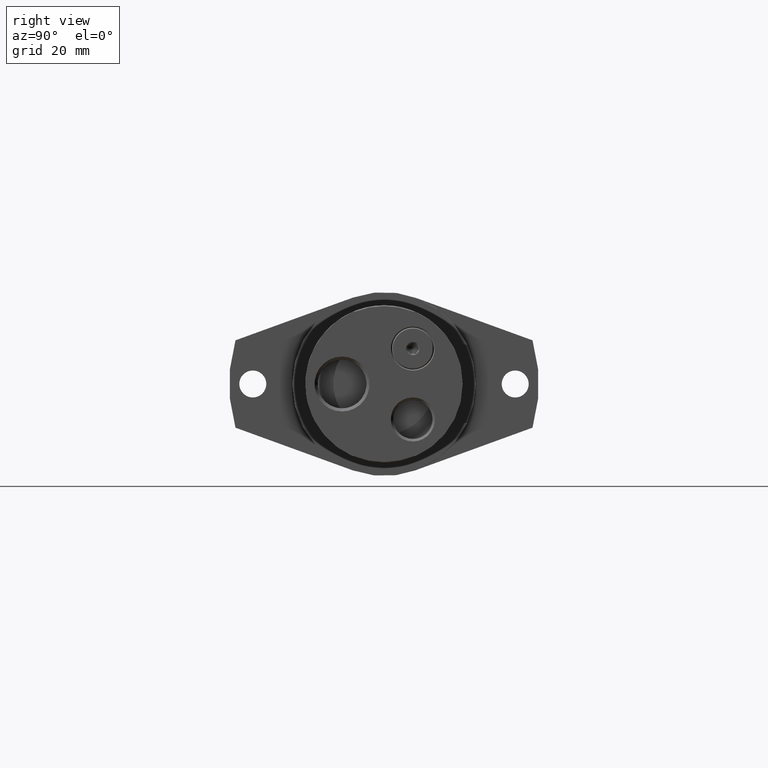
[diagram: clean part render]
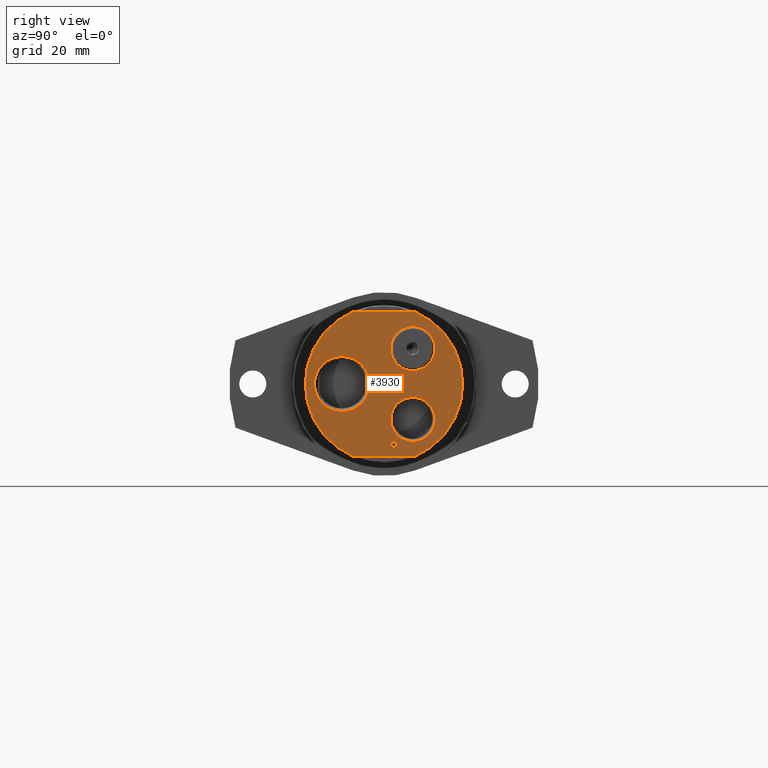
[diagram: same view with one face highlighted and labeled with its STEP entity id]
A machine part, right view. The second image highlights one B-rep face of the part: STEP entity #3930.
In plain terms, the highlighted planar face has unit normal (1, 0, 0).
Its self-contained STEP definition (entity closure, byte-faithful):
#101=FACE_BOUND('',#1281,.T.);
#102=FACE_BOUND('',#1282,.T.);
#103=FACE_BOUND('',#1283,.T.);
#104=FACE_BOUND('',#1284,.T.);
#105=FACE_BOUND('',#1285,.T.);
#106=FACE_BOUND('',#1286,.T.);
#107=FACE_BOUND('',#1287,.T.);
#108=FACE_BOUND('',#1288,.T.);
#125=B_SPLINE_CURVE_WITH_KNOTS('',2,(#5899,#5900,#5901,#5902),
 .UNSPECIFIED.,.F.,.F.,(3,1,3),(0.,1.,2.),.UNSPECIFIED.);
#126=B_SPLINE_CURVE_WITH_KNOTS('',2,(#5904,#5905,#5906,#5907),
 .UNSPECIFIED.,.F.,.F.,(3,1,3),(0.,1.,2.),.UNSPECIFIED.);
#127=B_SPLINE_CURVE_WITH_KNOTS('',2,(#5909,#5910,#5911,#5912),
 .UNSPECIFIED.,.F.,.F.,(3,1,3),(0.,1.,2.),.UNSPECIFIED.);
#394=LINE('',#5885,#703);
#395=LINE('',#5889,#704);
#396=LINE('',#5895,#705);
#397=LINE('',#5897,#706);
#398=LINE('',#5914,#707);
#399=LINE('',#5916,#708);
#400=LINE('',#5918,#709);
#401=LINE('',#5920,#710);
#402=LINE('',#5922,#711);
#403=LINE('',#5923,#712);
#404=LINE('',#5926,#713);
#405=LINE('',#5928,#714);
#406=LINE('',#5930,#715);
#407=LINE('',#5932,#716);
#408=LINE('',#5934,#717);
#409=LINE('',#5936,#718);
#410=LINE('',#5938,#719);
#411=LINE('',#5940,#720);
#412=LINE('',#5942,#721);
#413=LINE('',#5944,#722);
#414=LINE('',#5946,#723);
#415=LINE('',#5947,#724);
#416=LINE('',#5950,#725);
#417=LINE('',#5952,#726);
#418=LINE('',#5954,#727);
#419=LINE('',#5956,#728);
#420=LINE('',#5958,#729);
#421=LINE('',#5960,#730);
#422=LINE('',#5962,#731);
#423=LINE('',#5964,#732);
#424=LINE('',#5966,#733);
#425=LINE('',#5968,#734);
#426=LINE('',#5970,#735);
#427=LINE('',#5971,#736);
#428=LINE('',#5974,#737);
#429=LINE('',#5976,#738);
#430=LINE('',#5978,#739);
#431=LINE('',#5980,#740);
#432=LINE('',#5982,#741);
#433=LINE('',#5983,#742);
#434=LINE('',#5986,#743);
#435=LINE('',#5988,#744);
#436=LINE('',#5990,#745);
#437=LINE('',#5992,#746);
#438=LINE('',#5994,#747);
#439=LINE('',#5996,#748);
#440=LINE('',#5998,#749);
#441=LINE('',#6000,#750);
#442=LINE('',#6002,#751);
#443=LINE('',#6004,#752);
#444=LINE('',#6006,#753);
#445=LINE('',#6007,#754);
#703=VECTOR('',#4735,10.);
#704=VECTOR('',#4738,10.);
#705=VECTOR('',#4743,10.);
#706=VECTOR('',#4744,10.);
#707=VECTOR('',#4745,10.);
#708=VECTOR('',#4746,10.);
#709=VECTOR('',#4747,10.);
#710=VECTOR('',#4748,10.);
#711=VECTOR('',#4749,10.);
#712=VECTOR('',#4750,10.);
#713=VECTOR('',#4751,10.);
#714=VECTOR('',#4752,10.);
#715=VECTOR('',#4753,10.);
#716=VECTOR('',#4754,10.);
#717=VECTOR('',#4755,10.);
#718=VECTOR('',#4756,10.);
#719=VECTOR('',#4757,10.);
#720=VECTOR('',#4758,10.);
#721=VECTOR('',#4759,10.);
#722=VECTOR('',#4760,10.);
#723=VECTOR('',#4761,10.);
#724=VECTOR('',#4762,10.);
#725=VECTOR('',#4763,10.);
#726=VECTOR('',#4764,10.);
#727=VECTOR('',#4765,10.);
#728=VECTOR('',#4766,10.);
#729=VECTOR('',#4767,10.);
#730=VECTOR('',#4768,10.);
#731=VECTOR('',#4769,10.);
#732=VECTOR('',#4770,10.);
#733=VECTOR('',#4771,10.);
#734=VECTOR('',#4772,10.);
#735=VECTOR('',#4773,10.);
#736=VECTOR('',#4774,10.);
#737=VECTOR('',#4775,10.);
#738=VECTOR('',#4776,10.);
#739=VECTOR('',#4777,10.);
#740=VECTOR('',#4778,10.);
#741=VECTOR('',#4779,10.);
#742=VECTOR('',#4780,10.);
#743=VECTOR('',#4781,10.);
#744=VECTOR('',#4782,10.);
#745=VECTOR('',#4783,10.);
#746=VECTOR('',#4784,10.);
#747=VECTOR('',#4785,10.);
#748=VECTOR('',#4786,10.);
#749=VECTOR('',#4787,10.);
#750=VECTOR('',#4788,10.);
#751=VECTOR('',#4789,10.);
#752=VECTOR('',#4790,10.);
#753=VECTOR('',#4791,10.);
#754=VECTOR('',#4792,10.);
#1054=FACE_OUTER_BOUND('',#1280,.T.);
#1280=EDGE_LOOP('',(#2784,#2785,#2786,#2787));
#1281=EDGE_LOOP('',(#2788));
#1282=EDGE_LOOP('',(#2789,#2790,#2791,#2792,#2793,#2794,#2795,#2796,#2797,
#2798,#2799));
#1283=EDGE_LOOP('',(#2800,#2801,#2802,#2803,#2804,#2805,#2806,#2807,#2808,
#2809,#2810,#2811));
#1284=EDGE_LOOP('',(#2812,#2813,#2814,#2815,#2816,#2817,#2818,#2819,#2820,
#2821,#2822,#2823));
#1285=EDGE_LOOP('',(#2824,#2825,#2826,#2827,#2828,#2829));
#1286=EDGE_LOOP('',(#2830,#2831,#2832,#2833,#2834,#2835,#2836,#2837,#2838,
#2839,#2840,#2841));
#1287=EDGE_LOOP('',(#2842));
#1288=EDGE_LOOP('',(#2843));
#1528=CIRCLE('',#4212,10.4775);
#1530=CIRCLE('',#4215,30.);
#1531=CIRCLE('',#4216,30.);
#1532=CIRCLE('',#4217,8.41566502);
#1533=CIRCLE('',#4218,8.41566502);
#1741=VERTEX_POINT('',#5877);
#1743=VERTEX_POINT('',#5883);
#1744=VERTEX_POINT('',#5884);
#1745=VERTEX_POINT('',#5886);
#1746=VERTEX_POINT('',#5888);
#1747=VERTEX_POINT('',#5891);
#1748=VERTEX_POINT('',#5893);
#1749=VERTEX_POINT('',#5894);
#1750=VERTEX_POINT('',#5896);
#1751=VERTEX_POINT('',#5898);
#1752=VERTEX_POINT('',#5903);
#1753=VERTEX_POINT('',#5908);
#1754=VERTEX_POINT('',#5913);
#1755=VERTEX_POINT('',#5915);
#1756=VERTEX_POINT('',#5917);
#1757=VERTEX_POINT('',#5919);
#1758=VERTEX_POINT('',#5921);
#1759=VERTEX_POINT('',#5924);
#1760=VERTEX_POINT('',#5925);
#1761=VERTEX_POINT('',#5927);
#1762=VERTEX_POINT('',#5929);
#1763=VERTEX_POINT('',#5931);
#1764=VERTEX_POINT('',#5933);
#1765=VERTEX_POINT('',#5935);
#1766=VERTEX_POINT('',#5937);
#1767=VERTEX_POINT('',#5939);
#1768=VERTEX_POINT('',#5941);
#1769=VERTEX_POINT('',#5943);
#1770=VERTEX_POINT('',#5945);
#1771=VERTEX_POINT('',#5948);
#1772=VERTEX_POINT('',#5949);
#1773=VERTEX_POINT('',#5951);
#1774=VERTEX_POINT('',#5953);
#1775=VERTEX_POINT('',#5955);
#1776=VERTEX_POINT('',#5957);
#1777=VERTEX_POINT('',#5959);
#1778=VERTEX_POINT('',#5961);
#1779=VERTEX_POINT('',#5963);
#1780=VERTEX_POINT('',#5965);
#1781=VERTEX_POINT('',#5967);
#1782=VERTEX_POINT('',#5969);
#1783=VERTEX_POINT('',#5972);
#1784=VERTEX_POINT('',#5973);
#1785=VERTEX_POINT('',#5975);
#1786=VERTEX_POINT('',#5977);
#1787=VERTEX_POINT('',#5979);
#1788=VERTEX_POINT('',#5981);
#1789=VERTEX_POINT('',#5984);
#1790=VERTEX_POINT('',#5985);
#1791=VERTEX_POINT('',#5987);
#1792=VERTEX_POINT('',#5989);
#1793=VERTEX_POINT('',#5991);
#1794=VERTEX_POINT('',#5993);
#1795=VERTEX_POINT('',#5995);
#1796=VERTEX_POINT('',#5997);
#1797=VERTEX_POINT('',#5999);
#1798=VERTEX_POINT('',#6001);
#1799=VERTEX_POINT('',#6003);
#1800=VERTEX_POINT('',#6005);
#1801=VERTEX_POINT('',#6008);
#2142=EDGE_CURVE('',#1741,#1741,#1528,.T.);
#2145=EDGE_CURVE('',#1743,#1744,#394,.T.);
#2146=EDGE_CURVE('',#1744,#1745,#1530,.T.);
#2147=EDGE_CURVE('',#1745,#1746,#395,.T.);
#2148=EDGE_CURVE('',#1746,#1743,#1531,.T.);
#2149=EDGE_CURVE('',#1747,#1747,#1532,.T.);
#2150=EDGE_CURVE('',#1748,#1749,#396,.T.);
#2151=EDGE_CURVE('',#1749,#1750,#397,.T.);
#2152=EDGE_CURVE('',#1750,#1751,#125,.T.);
#2153=EDGE_CURVE('',#1751,#1752,#126,.T.);
#2154=EDGE_CURVE('',#1752,#1753,#127,.T.);
#2155=EDGE_CURVE('',#1753,#1754,#398,.T.);
#2156=EDGE_CURVE('',#1754,#1755,#399,.T.);
#2157=EDGE_CURVE('',#1755,#1756,#400,.T.);
#2158=EDGE_CURVE('',#1756,#1757,#401,.T.);
#2159=EDGE_CURVE('',#1757,#1758,#402,.T.);
#2160=EDGE_CURVE('',#1758,#1748,#403,.T.);
#2161=EDGE_CURVE('',#1759,#1760,#404,.T.);
#2162=EDGE_CURVE('',#1760,#1761,#405,.T.);
#2163=EDGE_CURVE('',#1761,#1762,#406,.T.);
#2164=EDGE_CURVE('',#1762,#1763,#407,.T.);
#2165=EDGE_CURVE('',#1763,#1764,#408,.T.);
#2166=EDGE_CURVE('',#1764,#1765,#409,.T.);
#2167=EDGE_CURVE('',#1765,#1766,#410,.T.);
#2168=EDGE_CURVE('',#1766,#1767,#411,.T.);
#2169=EDGE_CURVE('',#1767,#1768,#412,.T.);
#2170=EDGE_CURVE('',#1768,#1769,#413,.T.);
#2171=EDGE_CURVE('',#1769,#1770,#414,.T.);
#2172=EDGE_CURVE('',#1770,#1759,#415,.T.);
#2173=EDGE_CURVE('',#1771,#1772,#416,.T.);
#2174=EDGE_CURVE('',#1772,#1773,#417,.T.);
#2175=EDGE_CURVE('',#1773,#1774,#418,.T.);
#2176=EDGE_CURVE('',#1774,#1775,#419,.T.);
#2177=EDGE_CURVE('',#1775,#1776,#420,.T.);
#2178=EDGE_CURVE('',#1776,#1777,#421,.T.);
#2179=EDGE_CURVE('',#1777,#1778,#422,.T.);
#2180=EDGE_CURVE('',#1778,#1779,#423,.T.);
#2181=EDGE_CURVE('',#1779,#1780,#424,.T.);
#2182=EDGE_CURVE('',#1780,#1781,#425,.T.);
#2183=EDGE_CURVE('',#1781,#1782,#426,.T.);
#2184=EDGE_CURVE('',#1782,#1771,#427,.T.);
#2185=EDGE_CURVE('',#1783,#1784,#428,.T.);
#2186=EDGE_CURVE('',#1784,#1785,#429,.T.);
#2187=EDGE_CURVE('',#1785,#1786,#430,.T.);
#2188=EDGE_CURVE('',#1786,#1787,#431,.T.);
#2189=EDGE_CURVE('',#1787,#1788,#432,.T.);
#2190=EDGE_CURVE('',#1788,#1783,#433,.T.);
#2191=EDGE_CURVE('',#1789,#1790,#434,.T.);
#2192=EDGE_CURVE('',#1790,#1791,#435,.T.);
#2193=EDGE_CURVE('',#1791,#1792,#436,.T.);
#2194=EDGE_CURVE('',#1792,#1793,#437,.T.);
#2195=EDGE_CURVE('',#1793,#1794,#438,.T.);
#2196=EDGE_CURVE('',#1794,#1795,#439,.T.);
#2197=EDGE_CURVE('',#1795,#1796,#440,.T.);
#2198=EDGE_CURVE('',#1796,#1797,#441,.T.);
#2199=EDGE_CURVE('',#1797,#1798,#442,.T.);
#2200=EDGE_CURVE('',#1798,#1799,#443,.T.);
#2201=EDGE_CURVE('',#1799,#1800,#444,.T.);
#2202=EDGE_CURVE('',#1800,#1789,#445,.T.);
#2203=EDGE_CURVE('',#1801,#1801,#1533,.T.);
#2784=ORIENTED_EDGE('',*,*,#2145,.T.);
#2785=ORIENTED_EDGE('',*,*,#2146,.T.);
#2786=ORIENTED_EDGE('',*,*,#2147,.T.);
#2787=ORIENTED_EDGE('',*,*,#2148,.T.);
#2788=ORIENTED_EDGE('',*,*,#2149,.F.);
#2789=ORIENTED_EDGE('',*,*,#2150,.T.);
#2790=ORIENTED_EDGE('',*,*,#2151,.T.);
#2791=ORIENTED_EDGE('',*,*,#2152,.T.);
#2792=ORIENTED_EDGE('',*,*,#2153,.T.);
#2793=ORIENTED_EDGE('',*,*,#2154,.T.);
#2794=ORIENTED_EDGE('',*,*,#2155,.T.);
#2795=ORIENTED_EDGE('',*,*,#2156,.T.);
#2796=ORIENTED_EDGE('',*,*,#2157,.T.);
#2797=ORIENTED_EDGE('',*,*,#2158,.T.);
#2798=ORIENTED_EDGE('',*,*,#2159,.T.);
#2799=ORIENTED_EDGE('',*,*,#2160,.T.);
#2800=ORIENTED_EDGE('',*,*,#2161,.T.);
#2801=ORIENTED_EDGE('',*,*,#2162,.T.);
#2802=ORIENTED_EDGE('',*,*,#2163,.T.);
#2803=ORIENTED_EDGE('',*,*,#2164,.T.);
#2804=ORIENTED_EDGE('',*,*,#2165,.T.);
#2805=ORIENTED_EDGE('',*,*,#2166,.T.);
#2806=ORIENTED_EDGE('',*,*,#2167,.T.);
#2807=ORIENTED_EDGE('',*,*,#2168,.T.);
#2808=ORIENTED_EDGE('',*,*,#2169,.T.);
#2809=ORIENTED_EDGE('',*,*,#2170,.T.);
#2810=ORIENTED_EDGE('',*,*,#2171,.T.);
#2811=ORIENTED_EDGE('',*,*,#2172,.T.);
#2812=ORIENTED_EDGE('',*,*,#2173,.T.);
#2813=ORIENTED_EDGE('',*,*,#2174,.T.);
#2814=ORIENTED_EDGE('',*,*,#2175,.T.);
#2815=ORIENTED_EDGE('',*,*,#2176,.T.);
#2816=ORIENTED_EDGE('',*,*,#2177,.T.);
#2817=ORIENTED_EDGE('',*,*,#2178,.T.);
#2818=ORIENTED_EDGE('',*,*,#2179,.T.);
#2819=ORIENTED_EDGE('',*,*,#2180,.T.);
#2820=ORIENTED_EDGE('',*,*,#2181,.T.);
#2821=ORIENTED_EDGE('',*,*,#2182,.T.);
#2822=ORIENTED_EDGE('',*,*,#2183,.T.);
#2823=ORIENTED_EDGE('',*,*,#2184,.T.);
#2824=ORIENTED_EDGE('',*,*,#2185,.T.);
#2825=ORIENTED_EDGE('',*,*,#2186,.T.);
#2826=ORIENTED_EDGE('',*,*,#2187,.T.);
#2827=ORIENTED_EDGE('',*,*,#2188,.T.);
#2828=ORIENTED_EDGE('',*,*,#2189,.T.);
#2829=ORIENTED_EDGE('',*,*,#2190,.T.);
#2830=ORIENTED_EDGE('',*,*,#2191,.T.);
#2831=ORIENTED_EDGE('',*,*,#2192,.T.);
#2832=ORIENTED_EDGE('',*,*,#2193,.T.);
#2833=ORIENTED_EDGE('',*,*,#2194,.T.);
#2834=ORIENTED_EDGE('',*,*,#2195,.T.);
#2835=ORIENTED_EDGE('',*,*,#2196,.T.);
#2836=ORIENTED_EDGE('',*,*,#2197,.T.);
#2837=ORIENTED_EDGE('',*,*,#2198,.T.);
#2838=ORIENTED_EDGE('',*,*,#2199,.T.);
#2839=ORIENTED_EDGE('',*,*,#2200,.T.);
#2840=ORIENTED_EDGE('',*,*,#2201,.T.);
#2841=ORIENTED_EDGE('',*,*,#2202,.T.);
#2842=ORIENTED_EDGE('',*,*,#2203,.F.);
#2843=ORIENTED_EDGE('',*,*,#2142,.F.);
#3788=PLANE('',#4214);
#3930=ADVANCED_FACE('',(#1054,#101,#102,#103,#104,#105,#106,#107,#108),
#3788,.T.);
#4212=AXIS2_PLACEMENT_3D('',#5878,#4728,#4729);
#4214=AXIS2_PLACEMENT_3D('',#5882,#4733,#4734);
#4215=AXIS2_PLACEMENT_3D('',#5887,#4736,#4737);
#4216=AXIS2_PLACEMENT_3D('',#5890,#4739,#4740);
#4217=AXIS2_PLACEMENT_3D('',#5892,#4741,#4742);
#4218=AXIS2_PLACEMENT_3D('',#6009,#4793,#4794);
#4728=DIRECTION('center_axis',(1.,0.,0.));
#4729=DIRECTION('ref_axis',(0.,0.,1.));
#4733=DIRECTION('center_axis',(1.,0.,0.));
#4734=DIRECTION('ref_axis',(0.,0.,-1.));
#4735=DIRECTION('',(0.,-1.,0.));
#4736=DIRECTION('center_axis',(1.,0.,0.));
#4737=DIRECTION('ref_axis',(0.,1.,0.));
#4738=DIRECTION('',(0.,1.,0.));
#4739=DIRECTION('center_axis',(1.,0.,0.));
#4740=DIRECTION('ref_axis',(0.,1.,0.));
#4741=DIRECTION('center_axis',(1.,0.,0.));
#4742=DIRECTION('ref_axis',(0.,0.,1.));
#4743=DIRECTION('',(0.,1.,0.));
#4744=DIRECTION('',(0.,0.,-1.));
#4745=DIRECTION('',(0.,-0.77421417918587,-0.63292369583351));
#4746=DIRECTION('',(0.,-2.29714157565169E-16,1.));
#4747=DIRECTION('',(0.,0.783042313268789,0.621968436201278));
#4748=DIRECTION('',(0.,0.,1.));
#4749=DIRECTION('',(0.,-1.,0.));
#4750=DIRECTION('',(0.,-2.98348265618175E-16,1.));
#4751=DIRECTION('',(0.,-1.,0.));
#4752=DIRECTION('',(0.,0.,1.));
#4753=DIRECTION('',(0.,-1.,0.));
#4754=DIRECTION('',(0.,0.,-1.));
#4755=DIRECTION('',(0.,-1.,0.));
#4756=DIRECTION('',(0.,0.,1.));
#4757=DIRECTION('',(0.,1.,0.));
#4758=DIRECTION('',(0.,0.,-1.));
#4759=DIRECTION('',(0.,-1.,0.));
#4760=DIRECTION('',(0.,0.,1.));
#4761=DIRECTION('',(0.,-1.,0.));
#4762=DIRECTION('',(0.,0.,-1.));
#4763=DIRECTION('',(0.,0.,1.));
#4764=DIRECTION('',(0.,0.853796175794036,0.520607424264656));
#4765=DIRECTION('',(0.,-0.849159811848736,0.528135980540068));
#4766=DIRECTION('',(0.,0.,1.));
#4767=DIRECTION('',(0.,0.843830115736994,-0.536610413405565));
#4768=DIRECTION('',(0.,0.850471045146916,0.526021863962623));
#4769=DIRECTION('',(0.,0.,-1.));
#4770=DIRECTION('',(0.,-0.854198555614438,-0.519946946895746));
#4771=DIRECTION('',(0.,0.849477082513832,-0.527625517089335));
#4772=DIRECTION('',(0.,0.,-1.));
#4773=DIRECTION('',(0.,-0.844232761378656,0.535976720217371));
#4774=DIRECTION('',(0.,-0.851191118645098,-0.524855865490428));
#4775=DIRECTION('',(0.,-1.,0.));
#4776=DIRECTION('',(0.,1.77601145413361E-16,-1.));
#4777=DIRECTION('',(0.,-1.,0.));
#4778=DIRECTION('',(0.,-2.73729317825907E-16,1.));
#4779=DIRECTION('',(0.,1.,0.));
#4780=DIRECTION('',(0.,0.,-1.));
#4781=DIRECTION('',(0.,0.,1.));
#4782=DIRECTION('',(0.,1.,0.));
#4783=DIRECTION('',(0.,0.,1.));
#4784=DIRECTION('',(0.,-1.,0.));
#4785=DIRECTION('',(0.,0.,1.));
#4786=DIRECTION('',(0.,1.,0.));
#4787=DIRECTION('',(0.,0.,-1.));
#4788=DIRECTION('',(0.,-1.,0.));
#4789=DIRECTION('',(0.,0.,-1.));
#4790=DIRECTION('',(0.,1.,0.));
#4791=DIRECTION('',(0.,0.,-1.));
#4792=DIRECTION('',(0.,-1.,0.));
#4793=DIRECTION('center_axis',(1.,0.,0.));
#4794=DIRECTION('ref_axis',(0.,0.,1.));
#5877=CARTESIAN_POINT('',(41.,-16.,-10.4775));
#5878=CARTESIAN_POINT('Origin',(41.,-16.,0.));
#5882=CARTESIAN_POINT('Origin',(41.,15.,0.));
#5883=CARTESIAN_POINT('',(41.,11.9895788082818,27.5));
#5884=CARTESIAN_POINT('',(41.,-11.9895788082818,27.5));
#5885=CARTESIAN_POINT('',(41.,7.50000000000001,27.5));
#5886=CARTESIAN_POINT('',(41.,-11.9895788082818,-27.5));
#5887=CARTESIAN_POINT('Origin',(41.,0.,0.));
#5888=CARTESIAN_POINT('',(41.,11.9895788082818,-27.5));
#5889=CARTESIAN_POINT('',(41.,7.50000000000001,-27.5));
#5890=CARTESIAN_POINT('Origin',(41.,0.,0.));
#5891=CARTESIAN_POINT('',(41.,11.,5.08433498));
#5892=CARTESIAN_POINT('Origin',(41.,11.,13.5));
#5893=CARTESIAN_POINT('',(41.,1.23226464074408,-21.9419250685468));
#5894=CARTESIAN_POINT('',(41.,4.73226458113944,-21.9419250685468));
#5895=CARTESIAN_POINT('',(41.,9.86613229056973,-21.9419250685468));
#5896=CARTESIAN_POINT('',(41.,4.73226458113944,-22.8438699478383));
#5897=CARTESIAN_POINT('',(41.,4.73226458113944,-11.4219349739192));
#5898=CARTESIAN_POINT('',(41.,4.54790477876853,-23.7344696085224));
#5899=CARTESIAN_POINT('Ctrl Pts',(41.,4.73226458113944,-22.8438699478383));
#5900=CARTESIAN_POINT('Ctrl Pts',(41.,4.73226458113944,-23.1445182409355));
#5901=CARTESIAN_POINT('Ctrl Pts',(41.,4.66702957414665,-23.5501098061515));
#5902=CARTESIAN_POINT('Ctrl Pts',(41.,4.54790477876853,-23.7344696085224));
#5903=CARTESIAN_POINT('',(41.,3.7821025227663,-24.1315522597828));
#5904=CARTESIAN_POINT('Ctrl Pts',(41.,4.54790477876853,-23.7344696085224));
#5905=CARTESIAN_POINT('Ctrl Pts',(41.,4.42877998339041,-23.9188294108933));
#5906=CARTESIAN_POINT('Ctrl Pts',(41.,4.05722407399673,-24.1315522597828));
#5907=CARTESIAN_POINT('Ctrl Pts',(41.,3.7821025227663,-24.1315522597828));
#5908=CARTESIAN_POINT('',(41.,2.75536023879295,-23.4054582689066));
#5909=CARTESIAN_POINT('Ctrl Pts',(41.,3.7821025227663,-24.1315522597828));
#5910=CARTESIAN_POINT('Ctrl Pts',(41.,3.39920139476519,-24.1315522597828));
#5911=CARTESIAN_POINT('Ctrl Pts',(41.,2.8801576434748,-23.7401422178261));
#5912=CARTESIAN_POINT('Ctrl Pts',(41.,2.75536023879295,-23.4054582689066));
#5913=CARTESIAN_POINT('',(41.,1.23226464074408,-24.6505960110732));
#5914=CARTESIAN_POINT('',(41.,11.3981312491248,-16.3399527315963));
#5915=CARTESIAN_POINT('',(41.,1.23226464074408,-24.046463120227));
#5916=CARTESIAN_POINT('',(41.,1.23226464074408,-12.0232315601135));
#5917=CARTESIAN_POINT('',(41.,2.62489022480739,-22.9403043060016));
#5918=CARTESIAN_POINT('',(41.,12.0051027875577,-15.4896263030023));
#5919=CARTESIAN_POINT('',(41.,2.62489022480739,-22.4070790314519));
#5920=CARTESIAN_POINT('',(41.,2.62489022480739,-11.2035395157259));
#5921=CARTESIAN_POINT('',(41.,1.23226464074408,-22.4070790314519));
#5922=CARTESIAN_POINT('',(41.,8.11613232037205,-22.4070790314519));
#5923=CARTESIAN_POINT('',(41.,1.23226464074408,-10.9709625342734));
#5924=CARTESIAN_POINT('',(41.,-13.5291882959989,-14.6326634265444));
#5925=CARTESIAN_POINT('',(41.,-13.9432887751705,-14.6326634265444));
#5926=CARTESIAN_POINT('',(41.,0.528355612414748,-14.6326634265444));
#5927=CARTESIAN_POINT('',(41.,-13.9432887751705,-13.0244786889397));
#5928=CARTESIAN_POINT('',(41.,-13.9432887751705,-6.51223934446987));
#5929=CARTESIAN_POINT('',(41.,-15.2423163057224,-13.0244786889397));
#5930=CARTESIAN_POINT('',(41.,-0.121158152861214,-13.0244786889397));
#5931=CARTESIAN_POINT('',(41.,-15.2423163057224,-14.7489519172707));
#5932=CARTESIAN_POINT('',(41.,-15.2423163057224,-7.37447595863534));
#5933=CARTESIAN_POINT('',(41.,-15.656416784894,-14.7489519172707));
#5934=CARTESIAN_POINT('',(41.,-0.328208392447,-14.7489519172707));
#5935=CARTESIAN_POINT('',(41.,-15.656416784894,-12.5593247260347));
#5936=CARTESIAN_POINT('',(41.,-15.656416784894,-6.27966236301734));
#5937=CARTESIAN_POINT('',(41.,-12.1564168444987,-12.5593247260347));
#5938=CARTESIAN_POINT('',(41.,1.42179157775068,-12.5593247260347));
#5939=CARTESIAN_POINT('',(41.,-12.1564168444987,-14.7489519172707));
#5940=CARTESIAN_POINT('',(41.,-12.1564168444987,-7.37447595863534));
#5941=CARTESIAN_POINT('',(41.,-12.5705173236702,-14.7489519172707));
#5942=CARTESIAN_POINT('',(41.,1.21474133816489,-14.7489519172707));
#5943=CARTESIAN_POINT('',(41.,-12.5705173236702,-13.0244786889397));
#5944=CARTESIAN_POINT('',(41.,-12.5705173236702,-6.51223934446987));
#5945=CARTESIAN_POINT('',(41.,-13.5291882959989,-13.0244786889397));
#5946=CARTESIAN_POINT('',(41.,0.735405852000535,-13.0244786889397));
#5947=CARTESIAN_POINT('',(41.,-13.5291882959989,-7.31633171327221));
#5948=CARTESIAN_POINT('',(41.,-15.656416784894,-17.6788546226422));
#5949=CARTESIAN_POINT('',(41.,-15.656416784894,-17.1456293480925));
#5950=CARTESIAN_POINT('',(41.,-15.656416784894,-8.57281467404623));
#5951=CARTESIAN_POINT('',(41.,-14.2609548961788,-16.2947379525344));
#5952=CARTESIAN_POINT('',(41.,0.0256391154916774,-7.58340014054021));
#5953=CARTESIAN_POINT('',(41.,-15.656416784894,-15.4268287290652));
#5954=CARTESIAN_POINT('',(41.,-8.0629181941875,-20.1496144379193));
#5955=CARTESIAN_POINT('',(41.,-15.656416784894,-14.924802805686));
#5956=CARTESIAN_POINT('',(41.,-15.656416784894,-7.462401402843));
#5957=CARTESIAN_POINT('',(41.,-13.9035805100445,-16.039470533867));
#5958=CARTESIAN_POINT('',(41.,-7.24459439751103,-20.2740684986334));
#5959=CARTESIAN_POINT('',(41.,-12.1564168444987,-14.9588384615083));
#5960=CARTESIAN_POINT('',(41.,1.010755456159,-6.81485689243272));
#5961=CARTESIAN_POINT('',(41.,-12.1564168444987,-15.492063736058));
#5962=CARTESIAN_POINT('',(41.,-12.1564168444987,-7.74603186802901));
#5963=CARTESIAN_POINT('',(41.,-13.5263519913471,-16.3259373037049));
#5964=CARTESIAN_POINT('',(41.,0.506332157077457,-7.78430347422908));
#5965=CARTESIAN_POINT('',(41.,-12.1564168444987,-17.1768286992629));
#5966=CARTESIAN_POINT('',(41.,-6.20760502177493,-20.8717428748677));
#5967=CARTESIAN_POINT('',(41.,-12.1564168444987,-17.6788546226422));
#5968=CARTESIAN_POINT('',(41.,-12.1564168444987,-8.83942731132108));
#5969=CARTESIAN_POINT('',(41.,-13.8808900728296,-16.5840410270242));
#5970=CARTESIAN_POINT('',(41.,-7.34081572033255,-20.7361277047608));
#5971=CARTESIAN_POINT('',(41.,-0.601688771987176,-8.39590731755903));
#5972=CARTESIAN_POINT('',(41.,5.23266995671389,23.8804159916079));
#5973=CARTESIAN_POINT('',(41.,2.14677049549011,23.8804159916079));
#5974=CARTESIAN_POINT('',(41.,8.57338524774506,23.8804159916079));
#5975=CARTESIAN_POINT('',(41.,2.14677049549011,22.317612128433));
#5976=CARTESIAN_POINT('',(41.,2.14677049549011,11.1588060642165));
#5977=CARTESIAN_POINT('',(41.,1.73267001631854,22.317612128433));
#5978=CARTESIAN_POINT('',(41.,8.36633500815928,22.317612128433));
#5979=CARTESIAN_POINT('',(41.,1.73267001631854,24.345569954513));
#5980=CARTESIAN_POINT('',(41.,1.73267001631854,12.1727849772565));
#5981=CARTESIAN_POINT('',(41.,5.23266995671389,24.345569954513));
#5982=CARTESIAN_POINT('',(41.,10.116334978357,24.345569954513));
#5983=CARTESIAN_POINT('',(41.,5.23266995671389,11.940207995804));
#5984=CARTESIAN_POINT('',(41.,-15.656416784894,-20.5945758047543));
#5985=CARTESIAN_POINT('',(41.,-15.656416784894,-20.1294218418493));
#5986=CARTESIAN_POINT('',(41.,-15.656416784894,-10.0647109209246));
#5987=CARTESIAN_POINT('',(41.,-13.9432887751705,-20.1294218418493));
#5988=CARTESIAN_POINT('',(41.,0.528355612414749,-20.1294218418493));
#5989=CARTESIAN_POINT('',(41.,-13.9432887751705,-18.5184007995927));
#5990=CARTESIAN_POINT('',(41.,-13.9432887751705,-9.25920039979637));
#5991=CARTESIAN_POINT('',(41.,-15.656416784894,-18.5184007995927));
#5992=CARTESIAN_POINT('',(41.,-0.328208392446999,-18.5184007995927));
#5993=CARTESIAN_POINT('',(41.,-15.656416784894,-18.0532468366877));
#5994=CARTESIAN_POINT('',(41.,-15.656416784894,-9.02662341834384));
#5995=CARTESIAN_POINT('',(41.,-12.1564168444987,-18.0532468366877));
#5996=CARTESIAN_POINT('',(41.,1.42179157775068,-18.0532468366877));
#5997=CARTESIAN_POINT('',(41.,-12.1564168444987,-18.5184007995927));
#5998=CARTESIAN_POINT('',(41.,-12.1564168444987,-9.25920039979637));
#5999=CARTESIAN_POINT('',(41.,-13.5291882959989,-18.5184007995927));
#6000=CARTESIAN_POINT('',(41.,0.735405852000536,-18.5184007995927));
#6001=CARTESIAN_POINT('',(41.,-13.5291882959989,-20.1294218418493));
#6002=CARTESIAN_POINT('',(41.,-13.5291882959989,-10.0647109209246));
#6003=CARTESIAN_POINT('',(41.,-12.1564168444987,-20.1294218418493));
#6004=CARTESIAN_POINT('',(41.,1.42179157775068,-20.1294218418493));
#6005=CARTESIAN_POINT('',(41.,-12.1564168444987,-20.5945758047543));
#6006=CARTESIAN_POINT('',(41.,-12.1564168444987,-10.2972879023772));
#6007=CARTESIAN_POINT('',(41.,-0.328208392446999,-20.5945758047543));
#6008=CARTESIAN_POINT('',(41.,11.,-21.91566502));
#6009=CARTESIAN_POINT('Origin',(41.,11.,-13.5));